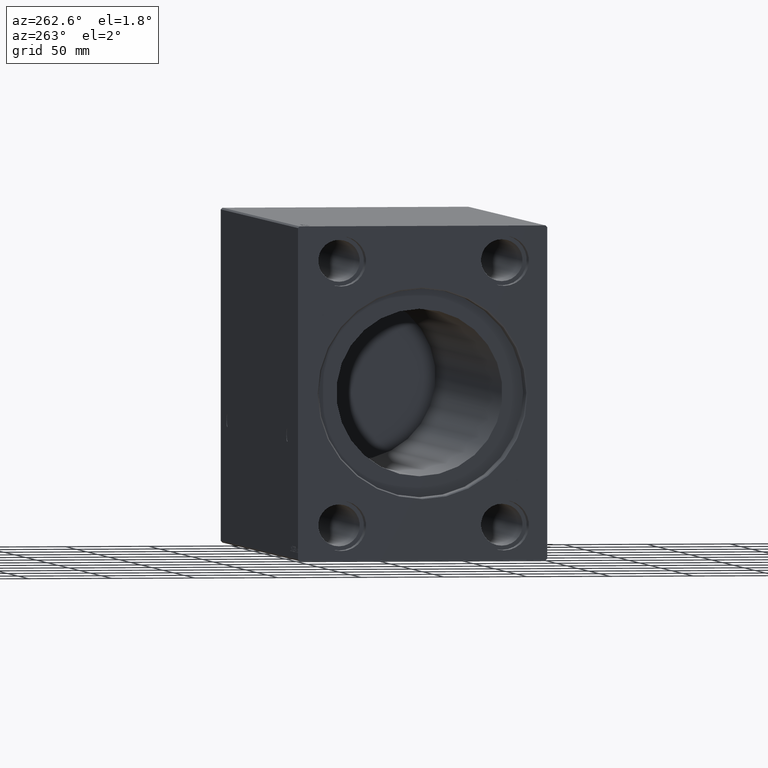
[diagram: clean part render]
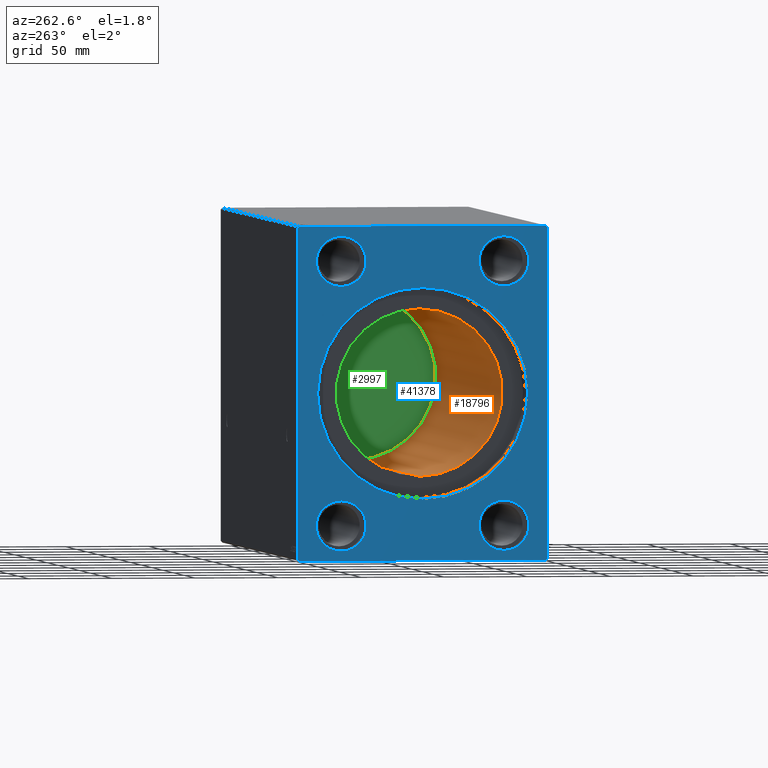
[diagram: same view with three faces highlighted in distinct colors, each labeled with its STEP entity id]
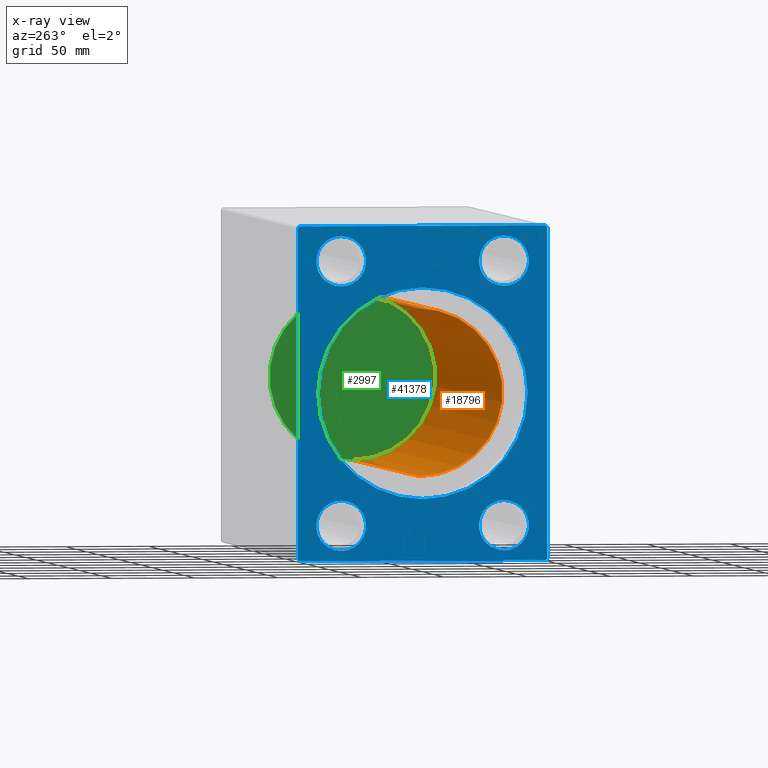
[diagram: x-ray of the same camera — body ghosted, the three highlighted faces saturated]
A machine part, auxiliary view with three faces highlighted in distinct colors.
The next image is the same camera in x-ray (body ghosted, the three faces saturated) — at least one of them is partly hidden behind the body in this view.
Their STEP definitions:

[orange] entity #18796 — the highlighted cylindrical surface (partial cylindrical patch) has radius 50 mm, axis along (-1, -0, -0).
#1809 = VERTEX_POINT ( 'NONE', #38024 ) ;
#5375 = VERTEX_POINT ( 'NONE', #31953 ) ;
#6879 = CIRCLE ( 'NONE', #17188, 50.00000000000000000 ) ;
#7152 = EDGE_CURVE ( 'NONE', #9193, #1809, #6879, .T. ) ;
#7854 = CARTESIAN_POINT ( 'NONE',  ( 324.6999999999999886, 6.123233995736766085E-15, -50.00000000000000000 ) ) ;
#8457 = DIRECTION ( 'NONE',  ( -1.000000000000000000, 0.000000000000000000, 0.000000000000000000 ) ) ;
#9193 = VERTEX_POINT ( 'NONE', #24511 ) ;
#10804 = ORIENTED_EDGE ( 'NONE', *, *, #38566, .F. ) ;
#11965 = VECTOR ( 'NONE', #17930, 1000.000000000000000 ) ;
#12170 = CARTESIAN_POINT ( 'NONE',  ( 324.6999999999999886, 0.000000000000000000, 50.00000000000000000 ) ) ;
#12305 = DIRECTION ( 'NONE',  ( 0.000000000000000000, 0.000000000000000000, 1.000000000000000000 ) ) ;
#14928 = LINE ( 'NONE', #34250, #11965 ) ;
#15599 = CARTESIAN_POINT ( 'NONE',  ( 324.6999999999999886, 0.000000000000000000, 0.000000000000000000 ) ) ;
#16153 = DIRECTION ( 'NONE',  ( -1.000000000000000000, -0.000000000000000000, -0.000000000000000000 ) ) ;
#17188 = AXIS2_PLACEMENT_3D ( 'NONE', #25218, #8457, #12305 ) ;
#17433 = AXIS2_PLACEMENT_3D ( 'NONE', #20001, #16153, #26031 ) ;
#17619 = EDGE_CURVE ( 'NONE', #23375, #1809, #14928, .T. ) ;
#17930 = DIRECTION ( 'NONE',  ( -1.000000000000000000, -0.000000000000000000, -0.000000000000000000 ) ) ;
#18291 = ORIENTED_EDGE ( 'NONE', *, *, #7152, .T. ) ;
#18796 = ADVANCED_FACE ( 'NONE', ( #36735 ), #32479, .F. ) ;
#20001 = CARTESIAN_POINT ( 'NONE',  ( 324.6999999999999886, 0.000000000000000000, 0.000000000000000000 ) ) ;
#20083 = ORIENTED_EDGE ( 'NONE', *, *, #17619, .F. ) ;
#20967 = DIRECTION ( 'NONE',  ( -1.000000000000000000, -0.000000000000000000, -0.000000000000000000 ) ) ;
#21548 = AXIS2_PLACEMENT_3D ( 'NONE', #15599, #29538, #32558 ) ;
#23375 = VERTEX_POINT ( 'NONE', #12170 ) ;
#24511 = CARTESIAN_POINT ( 'NONE',  ( 15.00000000000001421, 6.123233995736766085E-15, -50.00000000000000000 ) ) ;
#25218 = CARTESIAN_POINT ( 'NONE',  ( 15.00000000000001421, 0.000000000000000000, 0.000000000000000000 ) ) ;
#25704 = EDGE_LOOP ( 'NONE', ( #10804, #40650, #18291, #20083 ) ) ;
#26031 = DIRECTION ( 'NONE',  ( 0.000000000000000000, 0.000000000000000000, 1.000000000000000000 ) ) ;
#29538 = DIRECTION ( 'NONE',  ( -1.000000000000000000, 0.000000000000000000, 0.000000000000000000 ) ) ;
#31027 = CIRCLE ( 'NONE', #21548, 50.00000000000000000 ) ;
#31953 = CARTESIAN_POINT ( 'NONE',  ( 324.6999999999999886, 6.123233995736766085E-15, -50.00000000000000000 ) ) ;
#32479 = CYLINDRICAL_SURFACE ( 'NONE', #17433, 50.00000000000000000 ) ;
#32519 = EDGE_CURVE ( 'NONE', #5375, #9193, #37270, .T. ) ;
#32558 = DIRECTION ( 'NONE',  ( 0.000000000000000000, 0.000000000000000000, 1.000000000000000000 ) ) ;
#34250 = CARTESIAN_POINT ( 'NONE',  ( 324.6999999999999886, 0.000000000000000000, 50.00000000000000000 ) ) ;
#36735 = FACE_OUTER_BOUND ( 'NONE', #25704, .T. ) ;
#37270 = LINE ( 'NONE', #7854, #39911 ) ;
#38024 = CARTESIAN_POINT ( 'NONE',  ( 15.00000000000001421, 0.000000000000000000, 50.00000000000000000 ) ) ;
#38566 = EDGE_CURVE ( 'NONE', #5375, #23375, #31027, .T. ) ;
#39911 = VECTOR ( 'NONE', #20967, 1000.000000000000000 ) ;
#40650 = ORIENTED_EDGE ( 'NONE', *, *, #32519, .T. ) ;

[blue] entity #41378 — the highlighted planar face has unit normal (1, 0, 0).
#150 = EDGE_CURVE ( 'NONE', #28373, #32236, #24751, .T. ) ;
#208 = VECTOR ( 'NONE', #28555, 1000.000000000000000 ) ;
#236 = VECTOR ( 'NONE', #35979, 1000.000000000000000 ) ;
#275 = DIRECTION ( 'NONE',  ( 1.000000000000000000, -0.000000000000000000, -0.000000000000000000 ) ) ;
#292 = DIRECTION ( 'NONE',  ( 0.000000000000000000, 0.000000000000000000, 1.000000000000000000 ) ) ;
#318 = CARTESIAN_POINT ( 'NONE',  ( 0.000000000000000000, 75.00000000000001421, -99.00000000000004263 ) ) ;
#1208 = CARTESIAN_POINT ( 'NONE',  ( 0.000000000000000000, 75.00000000000001421, -99.00000000000004263 ) ) ;
#1545 = CIRCLE ( 'NONE', #7035, 15.00000000000000000 ) ;
#2065 = EDGE_LOOP ( 'NONE', ( #37344, #36683 ) ) ;
#2325 = CARTESIAN_POINT ( 'NONE',  ( 0.000000000000000000, 74.00000000000000000, 99.99999999999995737 ) ) ;
#2834 = ORIENTED_EDGE ( 'NONE', *, *, #150, .F. ) ;
#3062 = VERTEX_POINT ( 'NONE', #30021 ) ;
#3222 = EDGE_CURVE ( 'NONE', #32236, #38251, #19678, .T. ) ;
#3263 = ORIENTED_EDGE ( 'NONE', *, *, #41019, .F. ) ;
#4141 = ORIENTED_EDGE ( 'NONE', *, *, #3222, .F. ) ;
#4985 = CARTESIAN_POINT ( 'NONE',  ( 0.000000000000000000, 75.00000000000000000, 98.99999999999995737 ) ) ;
#5044 = CARTESIAN_POINT ( 'NONE',  ( 0.000000000000000000, 0.000000000000000000, 0.000000000000000000 ) ) ;
#5243 = EDGE_LOOP ( 'NONE', ( #37126, #27199 ) ) ;
#6391 = LINE ( 'NONE', #35591, #15878 ) ;
#6461 = EDGE_LOOP ( 'NONE', ( #2834, #38816, #31843, #14905, #23211, #38529, #3263, #4141 ) ) ;
#6706 = CARTESIAN_POINT ( 'NONE',  ( 0.000000000000000000, 49.00000000000000711, 79.00000000000001421 ) ) ;
#6711 = DIRECTION ( 'NONE',  ( -1.000000000000000000, 0.000000000000000000, 0.000000000000000000 ) ) ;
#7035 = AXIS2_PLACEMENT_3D ( 'NONE', #26088, #29734, #292 ) ;
#7377 = VERTEX_POINT ( 'NONE', #13999 ) ;
#7951 = VERTEX_POINT ( 'NONE', #25225 ) ;
#8419 = DIRECTION ( 'NONE',  ( 0.000000000000000000, -0.7071067811865474617, 0.7071067811865474617 ) ) ;
#8655 = EDGE_LOOP ( 'NONE', ( #28910, #23663 ) ) ;
#9065 = ORIENTED_EDGE ( 'NONE', *, *, #37382, .T. ) ;
#9073 = VECTOR ( 'NONE', #40667, 1000.000000000000114 ) ;
#9140 = VECTOR ( 'NONE', #41198, 1000.000000000000114 ) ;
#10279 = EDGE_CURVE ( 'NONE', #30073, #3062, #6391, .T. ) ;
#10339 = EDGE_CURVE ( 'NONE', #17260, #25205, #36431, .T. ) ;
#10437 = CIRCLE ( 'NONE', #39932, 15.00000000000000000 ) ;
#10873 = FACE_BOUND ( 'NONE', #8655, .T. ) ;
#11077 = CARTESIAN_POINT ( 'NONE',  ( 0.000000000000000000, 0.000000000000000000, 0.000000000000000000 ) ) ;
#12250 = VERTEX_POINT ( 'NONE', #36460 ) ;
#12739 = DIRECTION ( 'NONE',  ( 0.000000000000000000, 0.000000000000000000, -1.000000000000000000 ) ) ;
#13222 = LINE ( 'NONE', #318, #236 ) ;
#13459 = CARTESIAN_POINT ( 'NONE',  ( 0.000000000000000000, 49.00000000000000711, -94.00000000000001421 ) ) ;
#13508 = VERTEX_POINT ( 'NONE', #13459 ) ;
#13885 = EDGE_CURVE ( 'NONE', #13508, #24653, #1545, .T. ) ;
#13952 = CIRCLE ( 'NONE', #32481, 63.20000000000003126 ) ;
#13999 = CARTESIAN_POINT ( 'NONE',  ( 0.000000000000000000, -48.99999999999999289, 94.00000000000001421 ) ) ;
#14056 = CARTESIAN_POINT ( 'NONE',  ( 0.000000000000000000, -74.99999999999997158, -99.00000000000005684 ) ) ;
#14183 = ORIENTED_EDGE ( 'NONE', *, *, #27328, .T. ) ;
#14466 = LINE ( 'NONE', #14056, #9073 ) ;
#14905 = ORIENTED_EDGE ( 'NONE', *, *, #10279, .F. ) ;
#14962 = DIRECTION ( 'NONE',  ( 0.000000000000000000, 0.000000000000000000, -1.000000000000000000 ) ) ;
#15532 = CARTESIAN_POINT ( 'NONE',  ( 0.000000000000000000, 0.000000000000000000, 63.20000000000003126 ) ) ;
#15686 = EDGE_CURVE ( 'NONE', #32441, #7951, #21495, .T. ) ;
#15878 = VECTOR ( 'NONE', #25530, 1000.000000000000000 ) ;
#16076 = LINE ( 'NONE', #35818, #208 ) ;
#16645 = EDGE_CURVE ( 'NONE', #7951, #32441, #27018, .T. ) ;
#16941 = CARTESIAN_POINT ( 'NONE',  ( 0.000000000000000000, -73.99999999999998579, -100.0000000000000426 ) ) ;
#17260 = VERTEX_POINT ( 'NONE', #35359 ) ;
#17995 = AXIS2_PLACEMENT_3D ( 'NONE', #26502, #275, #25662 ) ;
#18172 = CARTESIAN_POINT ( 'NONE',  ( 0.000000000000000000, -48.99999999999999289, -64.00000000000001421 ) ) ;
#18189 = CARTESIAN_POINT ( 'NONE',  ( 0.000000000000000000, 0.000000000000000000, 0.000000000000000000 ) ) ;
#18750 = ORIENTED_EDGE ( 'NONE', *, *, #42354, .T. ) ;
#18952 = CARTESIAN_POINT ( 'NONE',  ( 0.000000000000000000, 49.00000000000000711, -64.00000000000001421 ) ) ;
#19084 = EDGE_CURVE ( 'NONE', #3062, #36306, #33470, .T. ) ;
#19678 = LINE ( 'NONE', #38987, #23360 ) ;
#19754 = CARTESIAN_POINT ( 'NONE',  ( 0.000000000000000000, -75.00000000000000000, 98.99999999999994316 ) ) ;
#19803 = EDGE_CURVE ( 'NONE', #35613, #7377, #35308, .T. ) ;
#20027 = CARTESIAN_POINT ( 'NONE',  ( 0.000000000000000000, -48.99999999999999289, 79.00000000000001421 ) ) ;
#20149 = CIRCLE ( 'NONE', #17995, 15.00000000000000000 ) ;
#20239 = DIRECTION ( 'NONE',  ( 0.000000000000000000, 0.000000000000000000, 1.000000000000000000 ) ) ;
#20315 = DIRECTION ( 'NONE',  ( 1.000000000000000000, -0.000000000000000000, -0.000000000000000000 ) ) ;
#20753 = DIRECTION ( 'NONE',  ( 0.000000000000000000, 0.000000000000000000, -1.000000000000000000 ) ) ;
#20764 = FACE_OUTER_BOUND ( 'NONE', #6461, .T. ) ;
#21189 = FACE_BOUND ( 'NONE', #42446, .T. ) ;
#21495 = CIRCLE ( 'NONE', #29739, 15.00000000000000000 ) ;
#22932 = EDGE_CURVE ( 'NONE', #7377, #35613, #40846, .T. ) ;
#22966 = DIRECTION ( 'NONE',  ( 1.000000000000000000, -0.000000000000000000, -0.000000000000000000 ) ) ;
#23211 = ORIENTED_EDGE ( 'NONE', *, *, #27182, .F. ) ;
#23360 = VECTOR ( 'NONE', #32563, 1000.000000000000000 ) ;
#23415 = DIRECTION ( 'NONE',  ( 0.000000000000000000, 0.000000000000000000, 1.000000000000000000 ) ) ;
#23598 = DIRECTION ( 'NONE',  ( 0.000000000000000000, 0.000000000000000000, -1.000000000000000000 ) ) ;
#23642 = AXIS2_PLACEMENT_3D ( 'NONE', #20027, #6711, #20239 ) ;
#23663 = ORIENTED_EDGE ( 'NONE', *, *, #13885, .F. ) ;
#23813 = ORIENTED_EDGE ( 'NONE', *, *, #10339, .T. ) ;
#24433 = FACE_BOUND ( 'NONE', #35054, .T. ) ;
#24639 = DIRECTION ( 'NONE',  ( 1.000000000000000000, 0.000000000000000000, 0.000000000000000000 ) ) ;
#24653 = VERTEX_POINT ( 'NONE', #18952 ) ;
#24717 = CARTESIAN_POINT ( 'NONE',  ( 0.000000000000000000, 49.00000000000000711, 64.00000000000001421 ) ) ;
#24751 = LINE ( 'NONE', #4985, #34973 ) ;
#24783 = VERTEX_POINT ( 'NONE', #19754 ) ;
#25205 = VERTEX_POINT ( 'NONE', #15532 ) ;
#25225 = CARTESIAN_POINT ( 'NONE',  ( 0.000000000000000000, -48.99999999999999289, -94.00000000000001421 ) ) ;
#25530 = DIRECTION ( 'NONE',  ( 0.000000000000000000, 1.000000000000000000, 0.000000000000000000 ) ) ;
#25589 = AXIS2_PLACEMENT_3D ( 'NONE', #30279, #33294, #23415 ) ;
#25662 = DIRECTION ( 'NONE',  ( 0.000000000000000000, 0.000000000000000000, -1.000000000000000000 ) ) ;
#25913 = VERTEX_POINT ( 'NONE', #36017 ) ;
#26088 = CARTESIAN_POINT ( 'NONE',  ( 0.000000000000000000, 49.00000000000000711, -79.00000000000001421 ) ) ;
#26502 = CARTESIAN_POINT ( 'NONE',  ( 0.000000000000000000, 49.00000000000000711, 79.00000000000001421 ) ) ;
#26862 = AXIS2_PLACEMENT_3D ( 'NONE', #11077, #33224, #20753 ) ;
#27018 = CIRCLE ( 'NONE', #32500, 15.00000000000000000 ) ;
#27075 = AXIS2_PLACEMENT_3D ( 'NONE', #35627, #28777, #35421 ) ;
#27182 = EDGE_CURVE ( 'NONE', #12250, #30073, #14466, .T. ) ;
#27195 = DIRECTION ( 'NONE',  ( 0.000000000000000000, 0.000000000000000000, -1.000000000000000000 ) ) ;
#27199 = ORIENTED_EDGE ( 'NONE', *, *, #19803, .F. ) ;
#27328 = EDGE_CURVE ( 'NONE', #25913, #27450, #10437, .T. ) ;
#27450 = VERTEX_POINT ( 'NONE', #24717 ) ;
#27647 = PLANE ( 'NONE',  #35899 ) ;
#28123 = LINE ( 'NONE', #37548, #9140 ) ;
#28373 = VERTEX_POINT ( 'NONE', #41990 ) ;
#28467 = VECTOR ( 'NONE', #30878, 1000.000000000000114 ) ;
#28555 = DIRECTION ( 'NONE',  ( 0.000000000000000000, 1.401796748264086446E-16, -1.000000000000000000 ) ) ;
#28777 = DIRECTION ( 'NONE',  ( -1.000000000000000000, 0.000000000000000000, 0.000000000000000000 ) ) ;
#28910 = ORIENTED_EDGE ( 'NONE', *, *, #39048, .F. ) ;
#29065 = DIRECTION ( 'NONE',  ( 1.000000000000000000, -0.000000000000000000, -0.000000000000000000 ) ) ;
#29119 = CARTESIAN_POINT ( 'NONE',  ( 0.000000000000000000, -48.99999999999999289, 64.00000000000001421 ) ) ;
#29734 = DIRECTION ( 'NONE',  ( -1.000000000000000000, 0.000000000000000000, 0.000000000000000000 ) ) ;
#29739 = AXIS2_PLACEMENT_3D ( 'NONE', #36046, #22966, #23598 ) ;
#30021 = CARTESIAN_POINT ( 'NONE',  ( 0.000000000000000000, 74.00000000000001421, -100.0000000000000426 ) ) ;
#30073 = VERTEX_POINT ( 'NONE', #16941 ) ;
#30250 = CARTESIAN_POINT ( 'NONE',  ( 0.000000000000000000, 74.00000000000001421, -100.0000000000000426 ) ) ;
#30279 = CARTESIAN_POINT ( 'NONE',  ( 0.000000000000000000, 49.00000000000000711, -79.00000000000001421 ) ) ;
#30606 = DIRECTION ( 'NONE',  ( 0.000000000000000000, 0.000000000000000000, -1.000000000000000000 ) ) ;
#30878 = DIRECTION ( 'NONE',  ( 0.000000000000000000, 0.7071067811865474617, 0.7071067811865474617 ) ) ;
#31843 = ORIENTED_EDGE ( 'NONE', *, *, #19084, .F. ) ;
#32236 = VERTEX_POINT ( 'NONE', #2325 ) ;
#32441 = VERTEX_POINT ( 'NONE', #18172 ) ;
#32481 = AXIS2_PLACEMENT_3D ( 'NONE', #5044, #34242, #30606 ) ;
#32500 = AXIS2_PLACEMENT_3D ( 'NONE', #36203, #20315, #27195 ) ;
#32563 = DIRECTION ( 'NONE',  ( 0.000000000000000000, -1.000000000000000000, -9.376883653928687363E-17 ) ) ;
#33224 = DIRECTION ( 'NONE',  ( 1.000000000000000000, 0.000000000000000000, 0.000000000000000000 ) ) ;
#33294 = DIRECTION ( 'NONE',  ( -1.000000000000000000, 0.000000000000000000, 0.000000000000000000 ) ) ;
#33470 = LINE ( 'NONE', #30250, #28467 ) ;
#34242 = DIRECTION ( 'NONE',  ( 1.000000000000000000, 0.000000000000000000, 0.000000000000000000 ) ) ;
#34507 = FACE_BOUND ( 'NONE', #5243, .T. ) ;
#34973 = VECTOR ( 'NONE', #8419, 1000.000000000000114 ) ;
#35054 = EDGE_LOOP ( 'NONE', ( #18750, #23813 ) ) ;
#35308 = CIRCLE ( 'NONE', #27075, 15.00000000000000000 ) ;
#35359 = CARTESIAN_POINT ( 'NONE',  ( 0.000000000000000000, 7.739767770611276825E-15, -63.20000000000003126 ) ) ;
#35421 = DIRECTION ( 'NONE',  ( 0.000000000000000000, 0.000000000000000000, 1.000000000000000000 ) ) ;
#35591 = CARTESIAN_POINT ( 'NONE',  ( 0.000000000000000000, -73.99999999999998579, -100.0000000000000426 ) ) ;
#35613 = VERTEX_POINT ( 'NONE', #29119 ) ;
#35627 = CARTESIAN_POINT ( 'NONE',  ( 0.000000000000000000, -48.99999999999999289, 79.00000000000001421 ) ) ;
#35818 = CARTESIAN_POINT ( 'NONE',  ( 0.000000000000000000, -75.00000000000000000, 98.99999999999994316 ) ) ;
#35899 = AXIS2_PLACEMENT_3D ( 'NONE', #18189, #24639, #14962 ) ;
#35979 = DIRECTION ( 'NONE',  ( 0.000000000000000000, -7.008983741320432232E-17, 1.000000000000000000 ) ) ;
#36017 = CARTESIAN_POINT ( 'NONE',  ( 0.000000000000000000, 49.00000000000000711, 94.00000000000001421 ) ) ;
#36046 = CARTESIAN_POINT ( 'NONE',  ( 0.000000000000000000, -48.99999999999999289, -79.00000000000001421 ) ) ;
#36203 = CARTESIAN_POINT ( 'NONE',  ( 0.000000000000000000, -48.99999999999999289, -79.00000000000001421 ) ) ;
#36306 = VERTEX_POINT ( 'NONE', #1208 ) ;
#36431 = CIRCLE ( 'NONE', #26862, 63.20000000000003126 ) ;
#36460 = CARTESIAN_POINT ( 'NONE',  ( 0.000000000000000000, -74.99999999999997158, -99.00000000000005684 ) ) ;
#36683 = ORIENTED_EDGE ( 'NONE', *, *, #16645, .T. ) ;
#37126 = ORIENTED_EDGE ( 'NONE', *, *, #22932, .F. ) ;
#37282 = CARTESIAN_POINT ( 'NONE',  ( 0.000000000000000000, -74.00000000000000000, 99.99999999999994316 ) ) ;
#37344 = ORIENTED_EDGE ( 'NONE', *, *, #15686, .T. ) ;
#37382 = EDGE_CURVE ( 'NONE', #27450, #25913, #20149, .T. ) ;
#37548 = CARTESIAN_POINT ( 'NONE',  ( 0.000000000000000000, -74.00000000000000000, 99.99999999999994316 ) ) ;
#38251 = VERTEX_POINT ( 'NONE', #37282 ) ;
#38529 = ORIENTED_EDGE ( 'NONE', *, *, #41123, .F. ) ;
#38816 = ORIENTED_EDGE ( 'NONE', *, *, #41566, .F. ) ;
#38987 = CARTESIAN_POINT ( 'NONE',  ( 0.000000000000000000, 74.00000000000000000, 99.99999999999995737 ) ) ;
#39048 = EDGE_CURVE ( 'NONE', #24653, #13508, #42005, .T. ) ;
#39932 = AXIS2_PLACEMENT_3D ( 'NONE', #6706, #29065, #12739 ) ;
#40509 = FACE_BOUND ( 'NONE', #2065, .T. ) ;
#40667 = DIRECTION ( 'NONE',  ( 0.000000000000000000, 0.7071067811865474617, -0.7071067811865474617 ) ) ;
#40846 = CIRCLE ( 'NONE', #23642, 15.00000000000000000 ) ;
#41019 = EDGE_CURVE ( 'NONE', #38251, #24783, #28123, .T. ) ;
#41123 = EDGE_CURVE ( 'NONE', #24783, #12250, #16076, .T. ) ;
#41198 = DIRECTION ( 'NONE',  ( 0.000000000000000000, -0.7071067811865474617, -0.7071067811865474617 ) ) ;
#41378 = ADVANCED_FACE ( 'NONE', ( #34507, #10873, #24433, #20764, #40509, #21189 ), #27647, .F. ) ;
#41566 = EDGE_CURVE ( 'NONE', #36306, #28373, #13222, .T. ) ;
#41990 = CARTESIAN_POINT ( 'NONE',  ( 0.000000000000000000, 75.00000000000000000, 98.99999999999995737 ) ) ;
#42005 = CIRCLE ( 'NONE', #25589, 15.00000000000000000 ) ;
#42354 = EDGE_CURVE ( 'NONE', #25205, #17260, #13952, .T. ) ;
#42446 = EDGE_LOOP ( 'NONE', ( #14183, #9065 ) ) ;

[green] entity #2997 — the highlighted planar face has unit normal (-1, 0, 0).
#2997 = ADVANCED_FACE ( 'NONE', ( #10039 ), #24965, .T. ) ;
#4194 = AXIS2_PLACEMENT_3D ( 'NONE', #15480, #41669, #38438 ) ;
#5375 = VERTEX_POINT ( 'NONE', #31953 ) ;
#8623 = CARTESIAN_POINT ( 'NONE',  ( 324.6999999999999886, 0.000000000000000000, 0.000000000000000000 ) ) ;
#10039 = FACE_OUTER_BOUND ( 'NONE', #34483, .T. ) ;
#12170 = CARTESIAN_POINT ( 'NONE',  ( 324.6999999999999886, 0.000000000000000000, 50.00000000000000000 ) ) ;
#15480 = CARTESIAN_POINT ( 'NONE',  ( 324.6999999999999886, 0.000000000000000000, 0.000000000000000000 ) ) ;
#15599 = CARTESIAN_POINT ( 'NONE',  ( 324.6999999999999886, 0.000000000000000000, 0.000000000000000000 ) ) ;
#20010 = ORIENTED_EDGE ( 'NONE', *, *, #38566, .T. ) ;
#21548 = AXIS2_PLACEMENT_3D ( 'NONE', #15599, #29538, #32558 ) ;
#23375 = VERTEX_POINT ( 'NONE', #12170 ) ;
#24965 = PLANE ( 'NONE',  #35036 ) ;
#28391 = DIRECTION ( 'NONE',  ( -1.000000000000000000, 0.000000000000000000, 0.000000000000000000 ) ) ;
#29538 = DIRECTION ( 'NONE',  ( -1.000000000000000000, 0.000000000000000000, 0.000000000000000000 ) ) ;
#30809 = ORIENTED_EDGE ( 'NONE', *, *, #31936, .T. ) ;
#31027 = CIRCLE ( 'NONE', #21548, 50.00000000000000000 ) ;
#31936 = EDGE_CURVE ( 'NONE', #23375, #5375, #41231, .T. ) ;
#31953 = CARTESIAN_POINT ( 'NONE',  ( 324.6999999999999886, 6.123233995736766085E-15, -50.00000000000000000 ) ) ;
#32558 = DIRECTION ( 'NONE',  ( 0.000000000000000000, 0.000000000000000000, 1.000000000000000000 ) ) ;
#34483 = EDGE_LOOP ( 'NONE', ( #30809, #20010 ) ) ;
#35036 = AXIS2_PLACEMENT_3D ( 'NONE', #8623, #28391, #41471 ) ;
#38438 = DIRECTION ( 'NONE',  ( 0.000000000000000000, 0.000000000000000000, 1.000000000000000000 ) ) ;
#38566 = EDGE_CURVE ( 'NONE', #5375, #23375, #31027, .T. ) ;
#41231 = CIRCLE ( 'NONE', #4194, 50.00000000000000000 ) ;
#41471 = DIRECTION ( 'NONE',  ( 0.000000000000000000, 0.000000000000000000, 1.000000000000000000 ) ) ;
#41669 = DIRECTION ( 'NONE',  ( -1.000000000000000000, 0.000000000000000000, 0.000000000000000000 ) ) ;